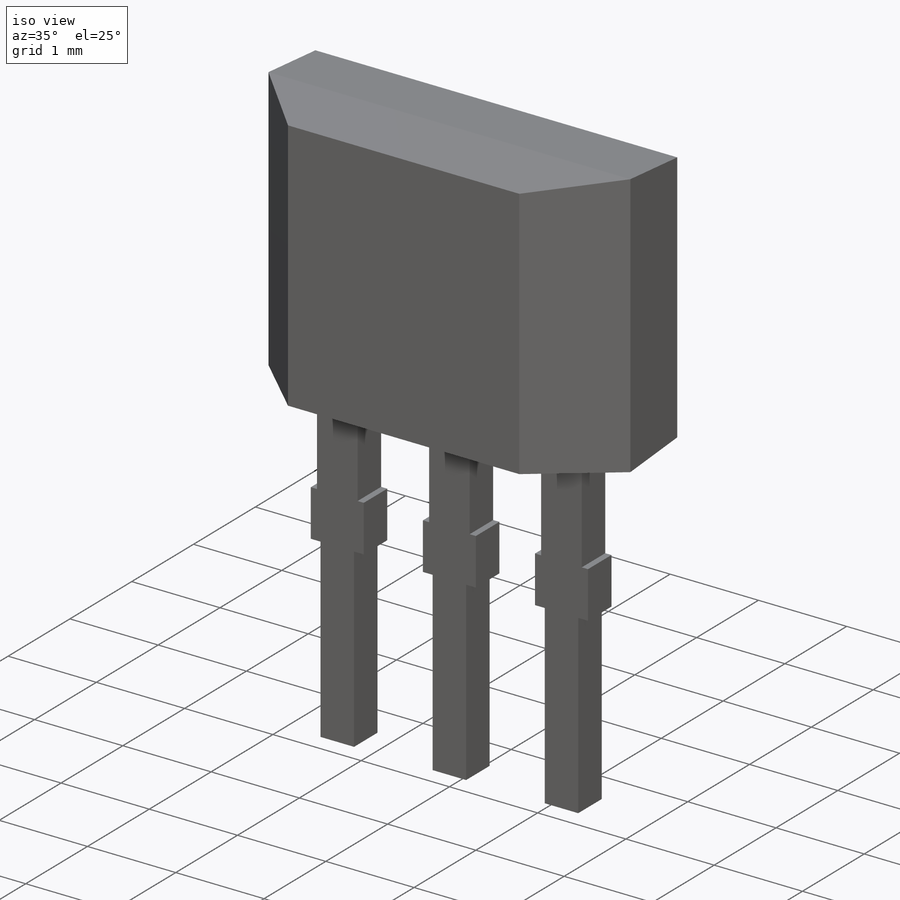
[diagram: iso view]
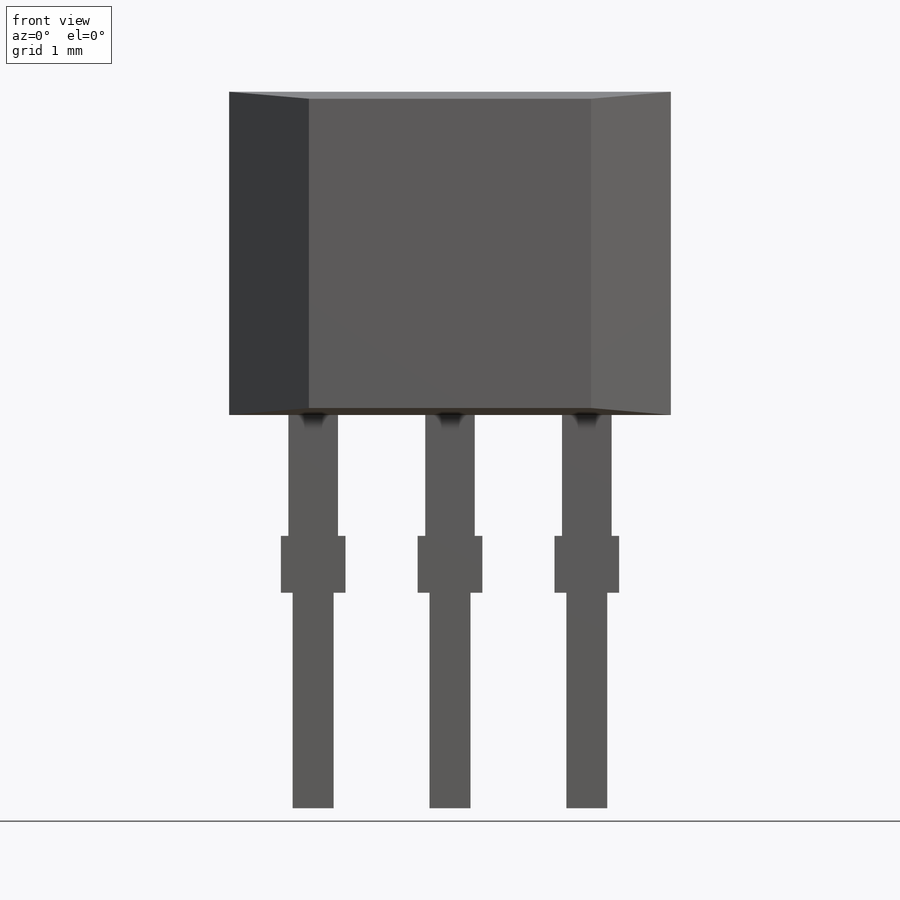
[diagram: front view]
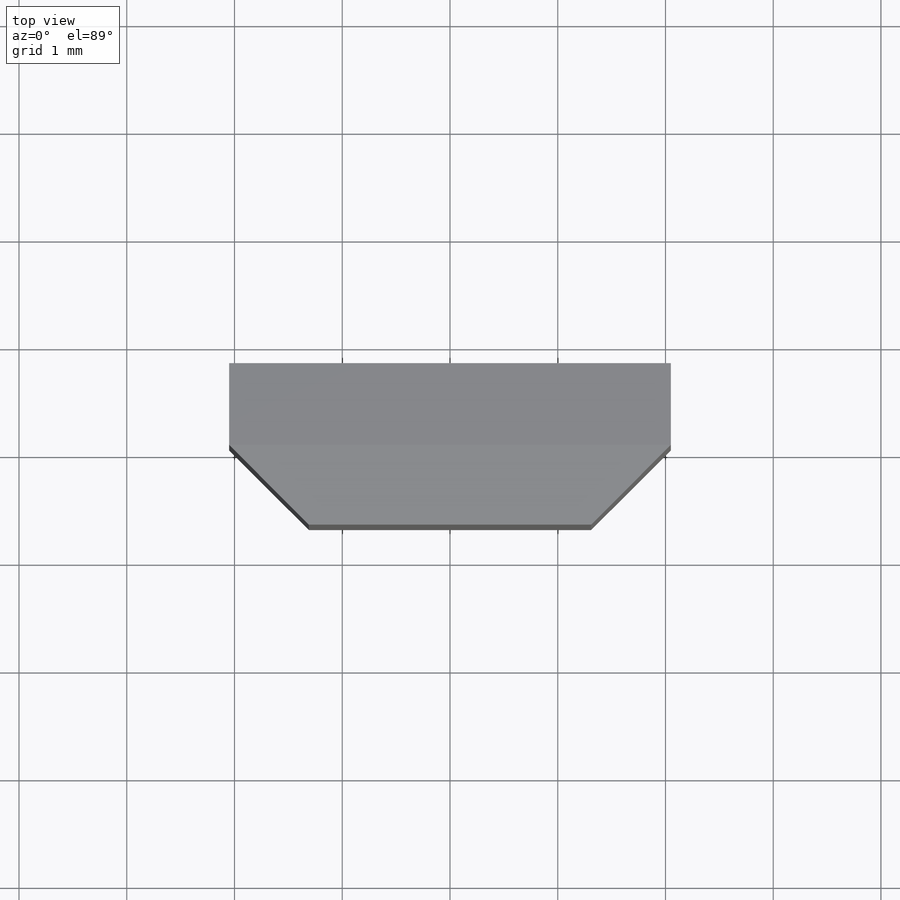
[diagram: top view]
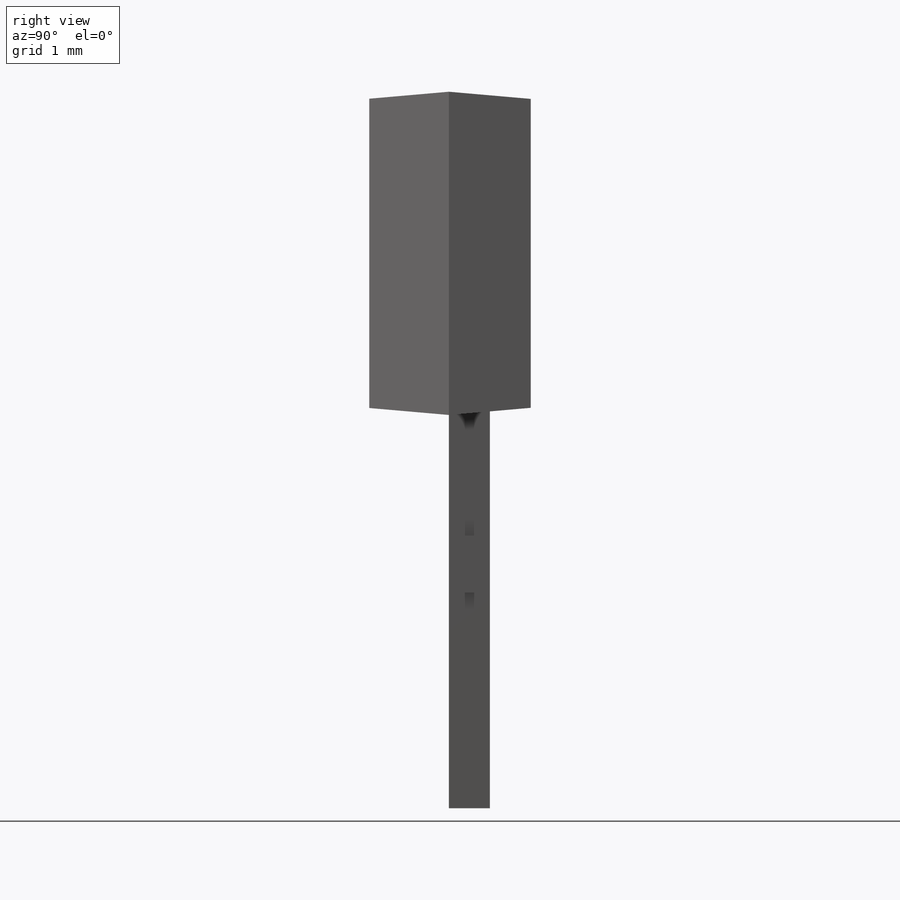
[diagram: right view]
SOLIDWORKS PART (.sldprt)
format: sldprt  version: not decoded by parser v0  size: 229,376 bytes
history: native  units: mm
features: sketch x6, extrude x2, cut_extrude x2, material x1, plane x1 (+12 scaffold rows collapsed)
feature tree (24):
  scaffold x12  (default folders/planes/origin — collapsed)
  material  "Material <not specified>"
  sketch  "Sketch1"  dims[D1=4.1mm D2=3.0mm D3=2.05mm D4=1.5mm]
  extrude  "Extrude1"  Depth=0.74mm
  sketch  "Sketch2"  dims[D1=135.0deg]
  cut_extrude  "Cut-Extrude1"  [1 undecoded]
  sketch  "Sketch3"  dims[D1=5.0deg]
  cut_extrude  "Cut-Extrude2"  [1 undecoded]
  sketch  "Sketch4"  dims[c1.D1=0.38mm c1.D2=10.5mm c1.D3=0.46mm c1.D4=0.19mm c1.D5=2.54mm c1.D6=1.27mm c1.D7=0.3mm c1.D8=0.3mm c1.D9=0.3mm c1.D10=0.3mm c1.D11=0.3mm c1.D12=0.3mm c1.D13=0.46mm c2.D13=90.0deg c3.D13=0.46mm c3.D14=0.46mm c3.D15=0.46mm c3.D16=0.23mm c3.D17=0.23mm c3.D18=0.23mm c3.D2=~0.52822mm c3.D3=1.65mm c3.D19=2.0mm]
  extrude  "Extrude2"  Depth=0.38mm
  sketch  "Sketch5"  dims[D1=6.0mm D2=0.5mm]
  plane  "Board Plane"  Offset=3.2mm
  sketch  "Component_Outline"
decode coverage: 7 of 10 modeling features carry decoded parameters
note: ~ marks probable driven/reference dimensions
note: 2 parameter values undecoded
note: suppression state not decoded; provenance and decode notes live in map.json
